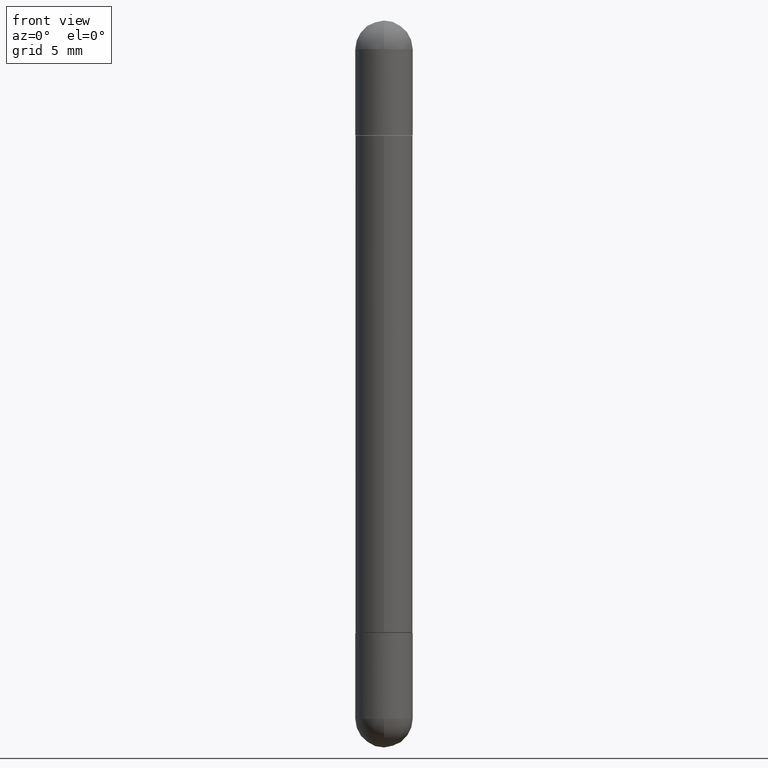
[diagram: clean part render]
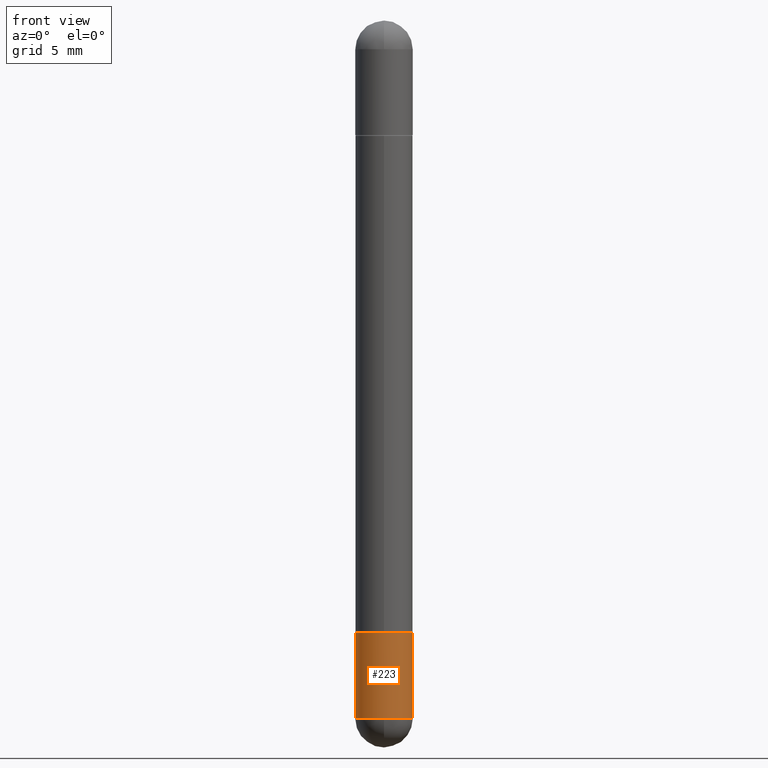
[diagram: same view with one face highlighted and labeled with its STEP entity id]
A machine part, front view. The second image highlights one B-rep face of the part: STEP entity #223.
In plain terms, the highlighted cylindrical surface (edge-blend (fillet) strip) has radius 1.4999 mm, axis along (-0, 0, 1).
Its self-contained STEP definition (entity closure, byte-faithful):
#10 = DIRECTION ( 'NONE',  ( -2.445468806185136597E-29, 3.491481338843145583E-15, 1.000000000000000000 ) ) ;
#12 = CARTESIAN_POINT ( 'NONE',  ( -0.05905000000000001914, -4.288599812930171320E-15, -1.437049999999999939 ) ) ;
#18 = LINE ( 'NONE', #67, #251 ) ;
#20 = CARTESIAN_POINT ( 'NONE',  ( -0.05905000000000001914, -4.288599812930171320E-15, -1.259899999999999798 ) ) ;
#23 = DIRECTION ( 'NONE',  ( 1.000000000000000000, -6.982962677686266711E-15, 4.876176775795935793E-29 ) ) ;
#43 = VERTEX_POINT ( 'NONE', #225 ) ;
#57 = ORIENTED_EDGE ( 'NONE', *, *, #583, .F. ) ;
#67 = CARTESIAN_POINT ( 'NONE',  ( -0.05905000000000001914, 4.195754854663392958E-16, -2.904631170795522943E-30 ) ) ;
#68 = CARTESIAN_POINT ( 'NONE',  ( 0.000000000000000000, 0.000000000000000000, 0.000000000000000000 ) ) ;
#87 = ORIENTED_EDGE ( 'NONE', *, *, #402, .T. ) ;
#94 = VERTEX_POINT ( 'NONE', #165 ) ;
#128 = CYLINDRICAL_SURFACE ( 'NONE', #792, 0.05905000000000001914 ) ;
#148 = ORIENTED_EDGE ( 'NONE', *, *, #354, .F. ) ;
#161 = VECTOR ( 'NONE', #397, 39.37007874015748143 ) ;
#165 = CARTESIAN_POINT ( 'NONE',  ( -4.195754854663065087E-16, -0.05905000000000539678, -1.437049999999999716 ) ) ;
#171 = DIRECTION ( 'NONE',  ( 1.000000000000000000, -6.982962677686270655E-15, 0.000000000000000000 ) ) ;
#173 = AXIS2_PLACEMENT_3D ( 'NONE', #281, #263, #334 ) ;
#223 = ADVANCED_FACE ( 'NONE', ( #696 ), #128, .T. ) ;
#225 = CARTESIAN_POINT ( 'NONE',  ( 0.05905000000000001914, -4.811261284925853162E-15, -1.259899999999999798 ) ) ;
#238 = AXIS2_PLACEMENT_3D ( 'NONE', #395, #10, #520 ) ;
#245 = CARTESIAN_POINT ( 'NONE',  ( 0.05905000000000001914, -5.120519244513884944E-15, -1.437049999999999939 ) ) ;
#251 = VECTOR ( 'NONE', #640, 39.37007874015748143 ) ;
#263 = DIRECTION ( 'NONE',  ( -2.445468806185136597E-29, 3.491481338843145583E-15, 1.000000000000000000 ) ) ;
#274 = CARTESIAN_POINT ( 'NONE',  ( 0.05905000000000001914, -4.123439461173741806E-16, 2.879382386107500921E-30 ) ) ;
#281 = CARTESIAN_POINT ( 'NONE',  ( 3.081046148912652946E-29, -4.398917338808479031E-15, -1.259899999999999798 ) ) ;
#289 = ORIENTED_EDGE ( 'NONE', *, *, #347, .T. ) ;
#334 = DIRECTION ( 'NONE',  ( 1.000000000000000000, -6.982962677686270655E-15, 0.000000000000000000 ) ) ;
#340 = CIRCLE ( 'NONE', #238, 0.05905000000000001914 ) ;
#346 = VERTEX_POINT ( 'NONE', #20 ) ;
#347 = EDGE_CURVE ( 'NONE', #632, #94, #340, .T. ) ;
#354 = EDGE_CURVE ( 'NONE', #346, #43, #793, .T. ) ;
#392 = AXIS2_PLACEMENT_3D ( 'NONE', #533, #673, #171 ) ;
#395 = CARTESIAN_POINT ( 'NONE',  ( 3.514260947928350449E-29, -5.017433257984542594E-15, -1.437049999999999939 ) ) ;
#397 = DIRECTION ( 'NONE',  ( -2.445468806185136877E-29, 3.491481338843145188E-15, 1.000000000000000000 ) ) ;
#400 = LINE ( 'NONE', #274, #161 ) ;
#402 = EDGE_CURVE ( 'NONE', #94, #815, #606, .T. ) ;
#442 = ORIENTED_EDGE ( 'NONE', *, *, #772, .T. ) ;
#520 = DIRECTION ( 'NONE',  ( 1.000000000000000000, -6.982962677686270655E-15, 0.000000000000000000 ) ) ;
#533 = CARTESIAN_POINT ( 'NONE',  ( 3.514260947928350449E-29, -5.017433257984542594E-15, -1.437049999999999939 ) ) ;
#566 = DIRECTION ( 'NONE',  ( -2.445468806185136597E-29, 3.491481338843145583E-15, 1.000000000000000000 ) ) ;
#567 = EDGE_LOOP ( 'NONE', ( #57, #289, #87, #442, #148 ) ) ;
#583 = EDGE_CURVE ( 'NONE', #632, #346, #18, .T. ) ;
#606 = CIRCLE ( 'NONE', #392, 0.05905000000000001914 ) ;
#632 = VERTEX_POINT ( 'NONE', #12 ) ;
#640 = DIRECTION ( 'NONE',  ( -2.445468806185136877E-29, 3.491481338843145188E-15, 1.000000000000000000 ) ) ;
#673 = DIRECTION ( 'NONE',  ( -2.445468806185136597E-29, 3.491481338843145583E-15, 1.000000000000000000 ) ) ;
#696 = FACE_OUTER_BOUND ( 'NONE', #567, .T. ) ;
#772 = EDGE_CURVE ( 'NONE', #815, #43, #400, .T. ) ;
#792 = AXIS2_PLACEMENT_3D ( 'NONE', #68, #566, #23 ) ;
#793 = CIRCLE ( 'NONE', #173, 0.05905000000000001914 ) ;
#815 = VERTEX_POINT ( 'NONE', #245 ) ;